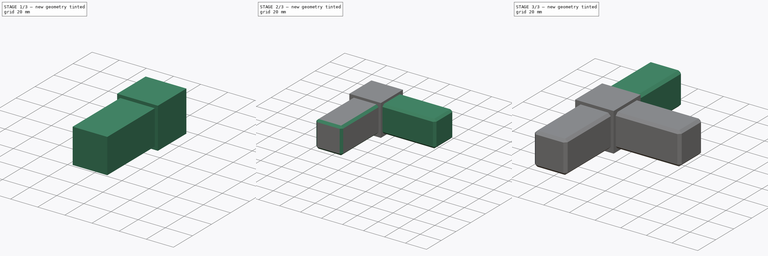
[diagram: build sequence overview — one tinted view per stage of 3, left to right]
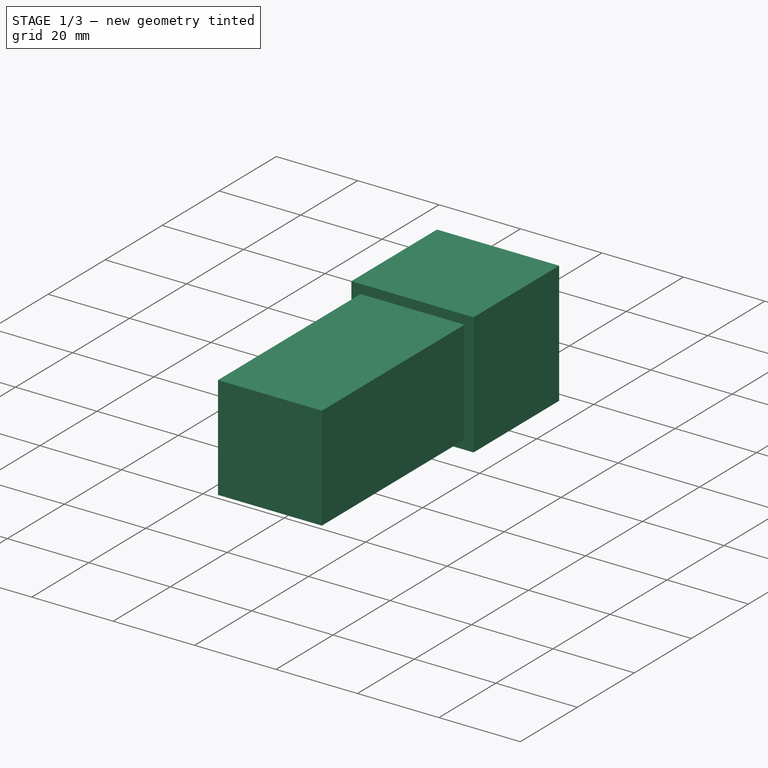
[diagram: stage 1 of 3 — iso view after this stage's code; geometry added in this stage tinted green]
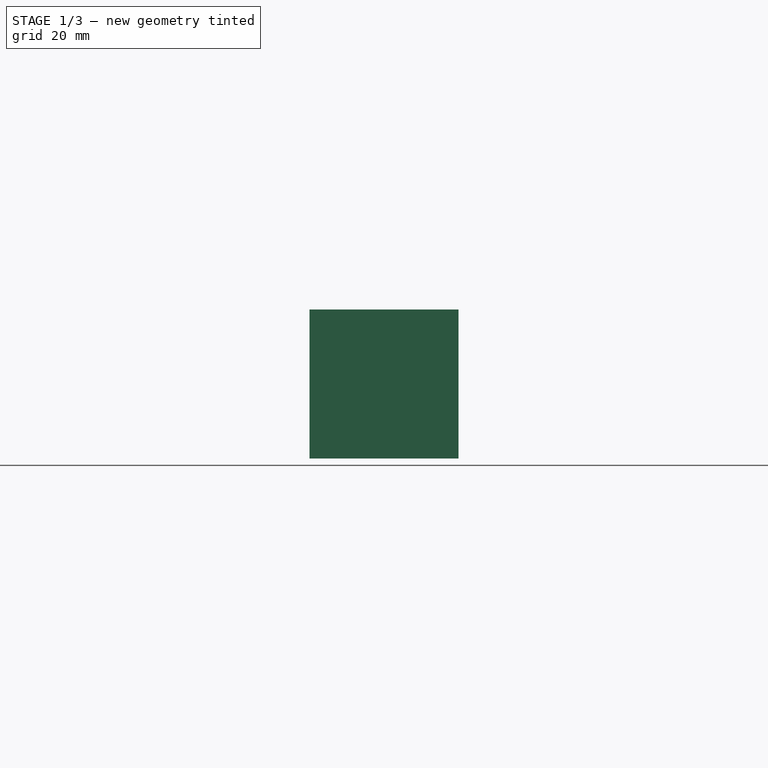
[diagram: stage 1 of 3 — front view after this stage's code; geometry added in this stage tinted green]
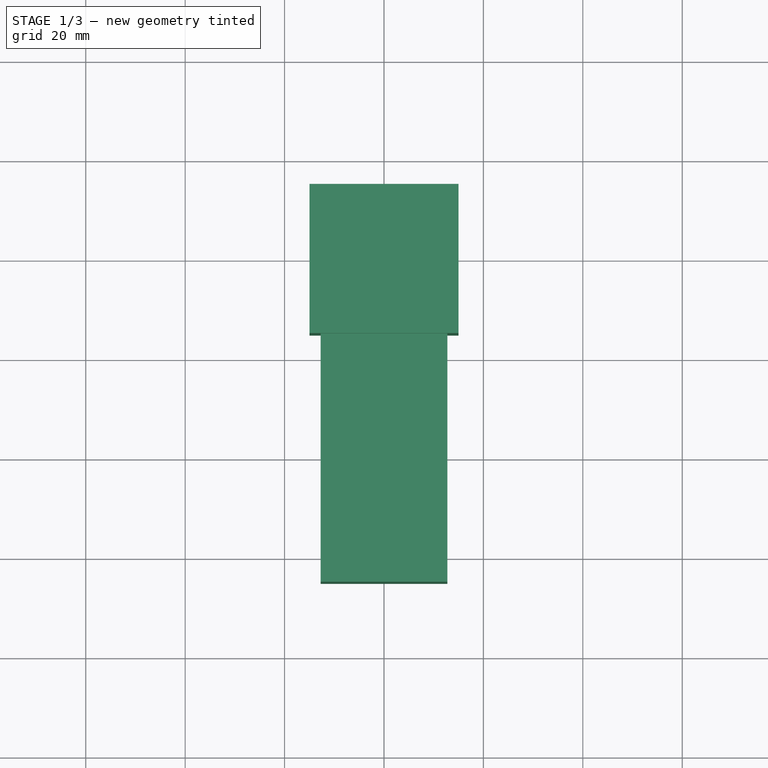
[diagram: stage 1 of 3 — top view after this stage's code; geometry added in this stage tinted green]
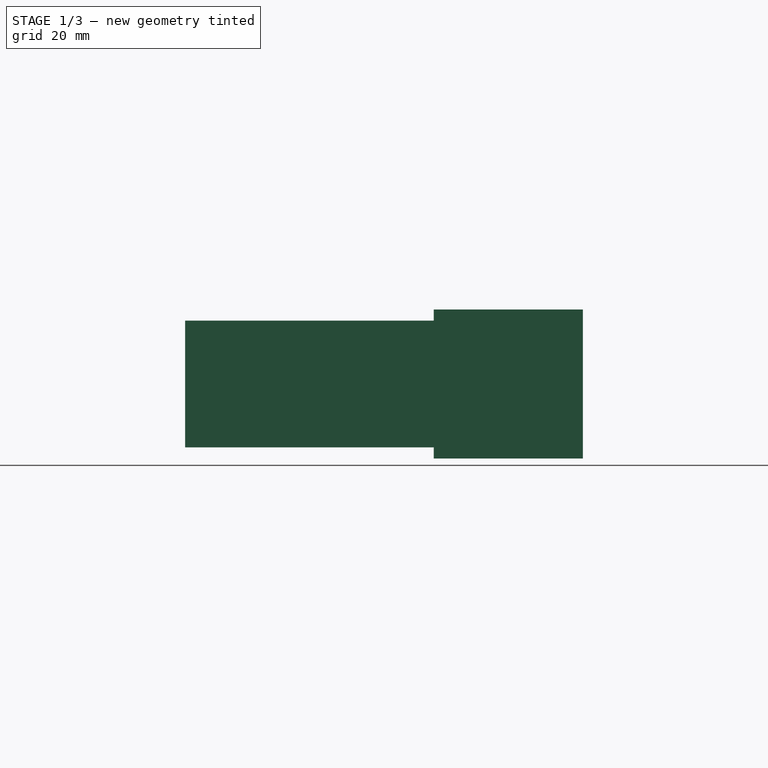
[diagram: stage 1 of 3 — right view after this stage's code; geometry added in this stage tinted green]
FCSTD DOCUMENT  (FreeCAD 0.20R29603 (Git))
Label: T-Verbinder_30x30x2
License: All rights reserved
LicenseURL: http://en.wikipedia.org/wiki/All_rights_reserved
objects: Sketcher::SketchObject×4, PartDesign::Pad×4, PartDesign::Chamfer×3, PartDesign::Body×1
note: 19 computed .brp shape members not serialized (recipe doc carries the construction recipe); baked Part::Feature solids carry a one-line shape summary decoded from their .brp

FEATURE [Sketcher::SketchObject] Sketch
  FullyConstrained = true
  MapMode = 5
  Support = -> [XY_Plane]
  sketch-geometry (5):
    g0: LineSegment StartX=15 StartY=15 StartZ=0 EndX=15 EndY=-15 EndZ=0
    g1: LineSegment StartX=15 StartY=-15 StartZ=0 EndX=-15 EndY=-15 EndZ=0
    g2: LineSegment StartX=-15 StartY=-15 StartZ=0 EndX=-15 EndY=15 EndZ=0
    g3: LineSegment StartX=-15 StartY=15 StartZ=0 EndX=15 EndY=15 EndZ=0
    g4: GeomPoint X=0 Y=0 Z=0
  constraints (12):
    c: Coincident(g0,g1)
    c: Coincident(g1,g2)
    c: Coincident(g2,g3)
    c: Coincident(g3,g0)
    c: Horizontal(g1)
    c: Horizontal(g3)
    c: Vertical(g0)
    c: Vertical(g2)
    c: Symmetric(g1,g0,g4)
    c: Coincident(g4,g-1)
    c: Distance(g3) = 30
    c: Distance(g0) = 30
FEATURE [PartDesign::Pad] Pad
  Direction = (0,0,1)
  Length = 30
  Length2 = 10
  Profile = -> Sketch
  ReferenceAxis = -> Sketch [N_Axis]
  Type = 0
FEATURE [Sketcher::SketchObject] Sketch001
  ExternalGeometry = -> [Pad]
  FullyConstrained = true
  MapMode = 5
  Placement = pos=(0,-15,0) rot=(1,0,0;1.5708rad)
  Support = -> [Pad]
  sketch-geometry (4):
    g0: LineSegment StartX=-12.75 StartY=27.75 StartZ=0 EndX=12.75 EndY=27.75 EndZ=0
    g1: LineSegment StartX=12.75 StartY=27.75 StartZ=0 EndX=12.75 EndY=2.25 EndZ=0
    g2: LineSegment StartX=12.75 StartY=2.25 StartZ=0 EndX=-12.75 EndY=2.25 EndZ=0
    g3: LineSegment StartX=-12.75 StartY=2.25 StartZ=0 EndX=-12.75 EndY=27.75 EndZ=0
  constraints (12):
    c: Coincident(g0,g1)
    c: Coincident(g1,g2)
    c: Coincident(g2,g3)
    c: Coincident(g3,g0)
    c: Horizontal(g0)
    c: Horizontal(g2)
    c: Vertical(g1)
    c: Vertical(g3)
    c: Distance(g1,g-3) = 2.25
    c: Distance(g1,g-4) = 2.25
    c: Distance(g1) = 25.5
    c: Distance(g2) = 25.5
FEATURE [PartDesign::Pad] Pad001
  BaseFeature = -> Pad
  Direction = (0,-1,2e-16)
  Length = 50
  Length2 = 10
  Profile = -> Sketch001
  ReferenceAxis = -> Sketch001 [N_Axis]
  Type = 0
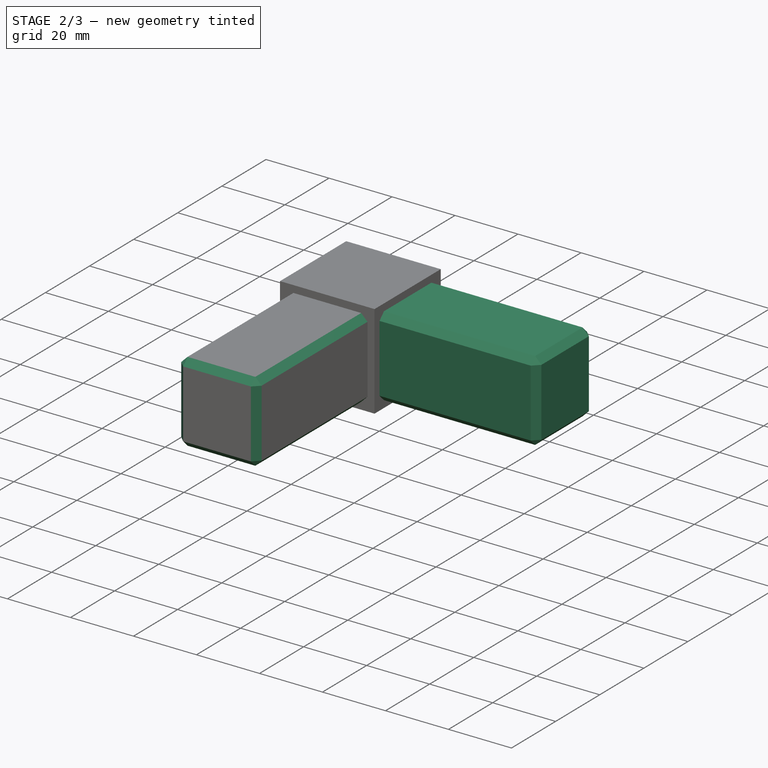
[diagram: stage 2 of 3 — iso view after this stage's code; geometry added in this stage tinted green]
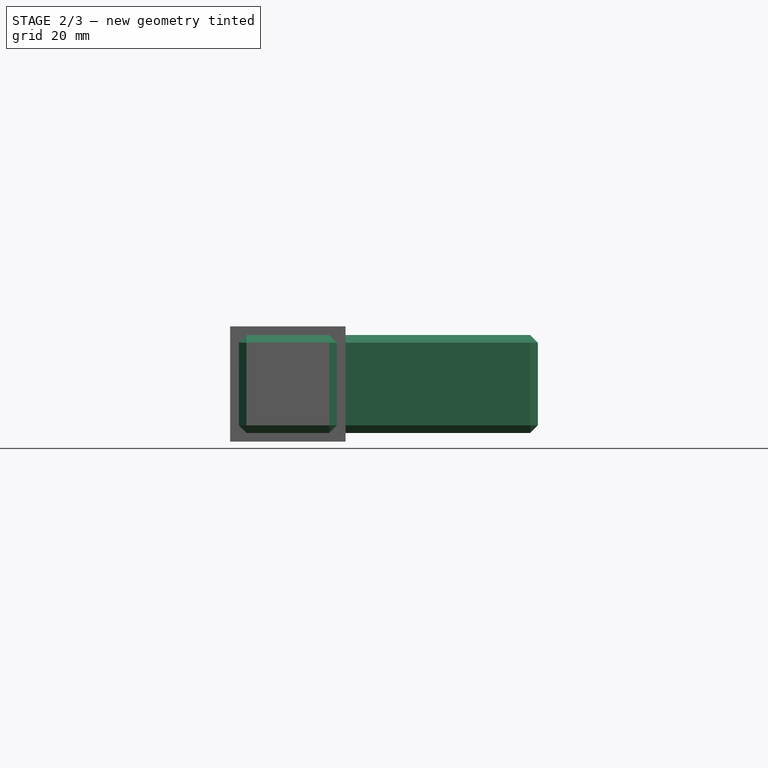
[diagram: stage 2 of 3 — front view after this stage's code; geometry added in this stage tinted green]
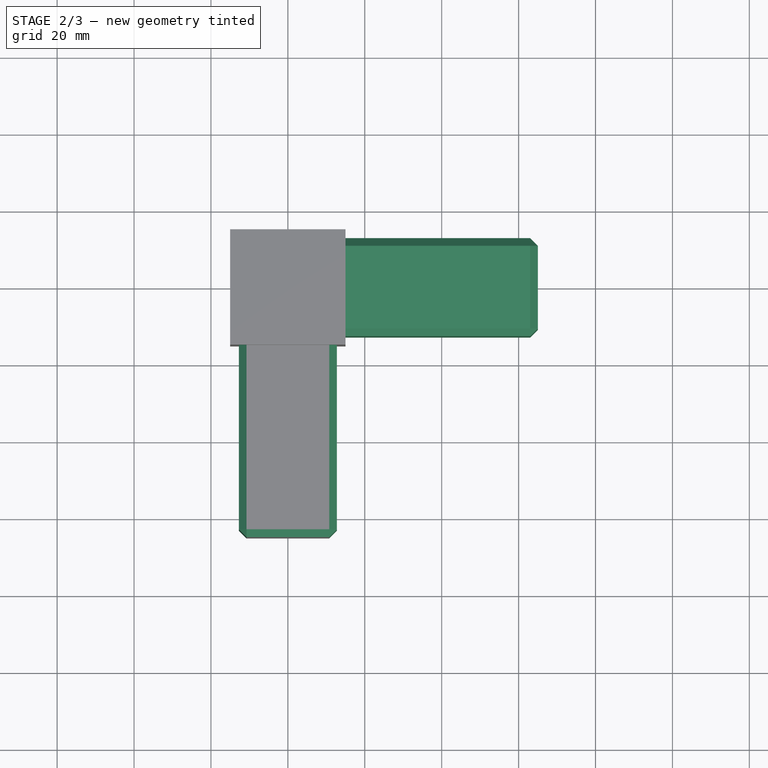
[diagram: stage 2 of 3 — top view after this stage's code; geometry added in this stage tinted green]
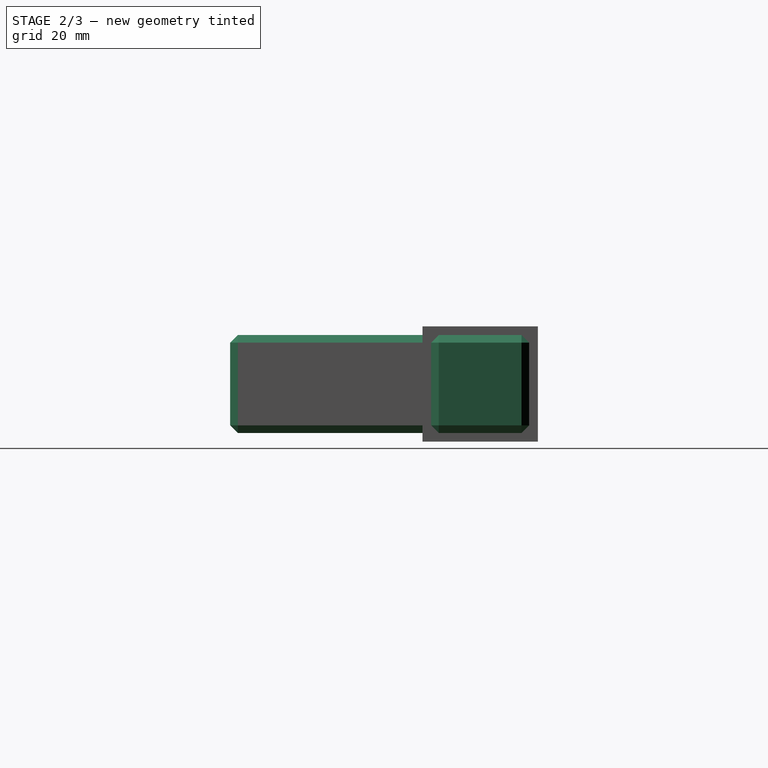
[diagram: stage 2 of 3 — right view after this stage's code; geometry added in this stage tinted green]
FEATURE [PartDesign::Chamfer] Chamfer
  Angle = 45
  Base = -> Pad001 [Edge18,Edge19,Edge17,Edge21,Edge23,Edge24,Edge22,Edge20]
  BaseFeature = -> Pad001
  ChamferType = 0
  FlipDirection = false
  Size = 2
  Size2 = 1
  SupportTransform = false
  UseAllEdges = false
FEATURE [Sketcher::SketchObject] Sketch002
  ExternalGeometry = -> [Chamfer]
  FullyConstrained = true
  MapMode = 5
  Placement = pos=(15,0,0) rot=(0.57735,0.57735,0.57735;2.0944rad)
  Support = -> [Chamfer]
  sketch-geometry (4):
    g0: LineSegment StartX=-12.75 StartY=27.75 StartZ=0 EndX=12.75 EndY=27.75 EndZ=0
    g1: LineSegment StartX=12.75 StartY=27.75 StartZ=0 EndX=12.75 EndY=2.25 EndZ=0
    g2: LineSegment StartX=12.75 StartY=2.25 StartZ=0 EndX=-12.75 EndY=2.25 EndZ=0
    g3: LineSegment StartX=-12.75 StartY=2.25 StartZ=0 EndX=-12.75 EndY=27.75 EndZ=0
  constraints (12):
    c: Coincident(g0,g1)
    c: Coincident(g1,g2)
    c: Coincident(g2,g3)
    c: Coincident(g3,g0)
    c: Horizontal(g0)
    c: Horizontal(g2)
    c: Vertical(g1)
    c: Vertical(g3)
    c: Distance(g1,g-3) = 2.25
    c: Distance(g1,g-4) = 2.25
    c: Distance(g1) = 25.5
    c: Distance(g2) = 25.5
FEATURE [PartDesign::Pad] Pad002
  BaseFeature = -> Chamfer
  Direction = (1,0,0)
  Length = 50
  Length2 = 10
  Profile = -> Sketch002
  ReferenceAxis = -> Sketch002 [N_Axis]
  Type = 0
FEATURE [PartDesign::Chamfer] Chamfer001
  Angle = 45
  Base = -> Pad002 [Edge59,Edge58,Edge54,Edge60,Edge55,Edge57,Edge53,Edge56]
  BaseFeature = -> Pad002
  ChamferType = 0
  FlipDirection = false
  Size = 2
  Size2 = 1
  SupportTransform = false
  UseAllEdges = false
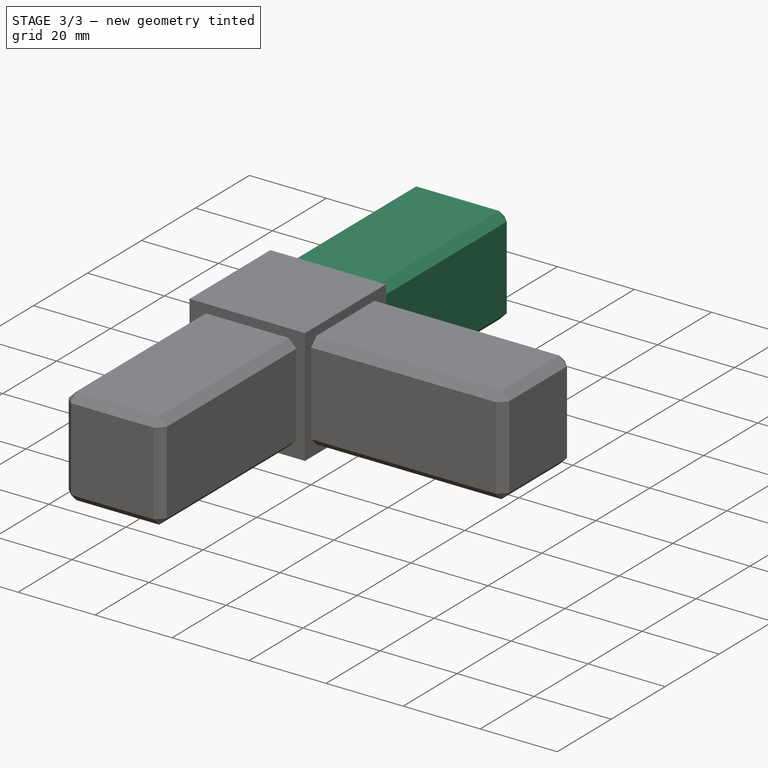
[diagram: stage 3 of 3 — iso view after this stage's code; geometry added in this stage tinted green]
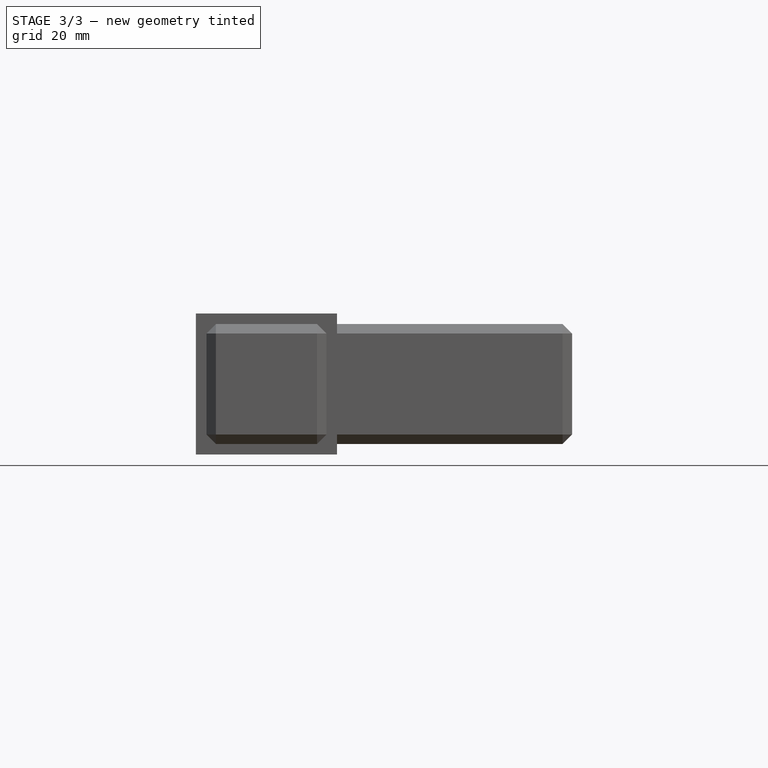
[diagram: stage 3 of 3 — front view after this stage's code; geometry added in this stage tinted green]
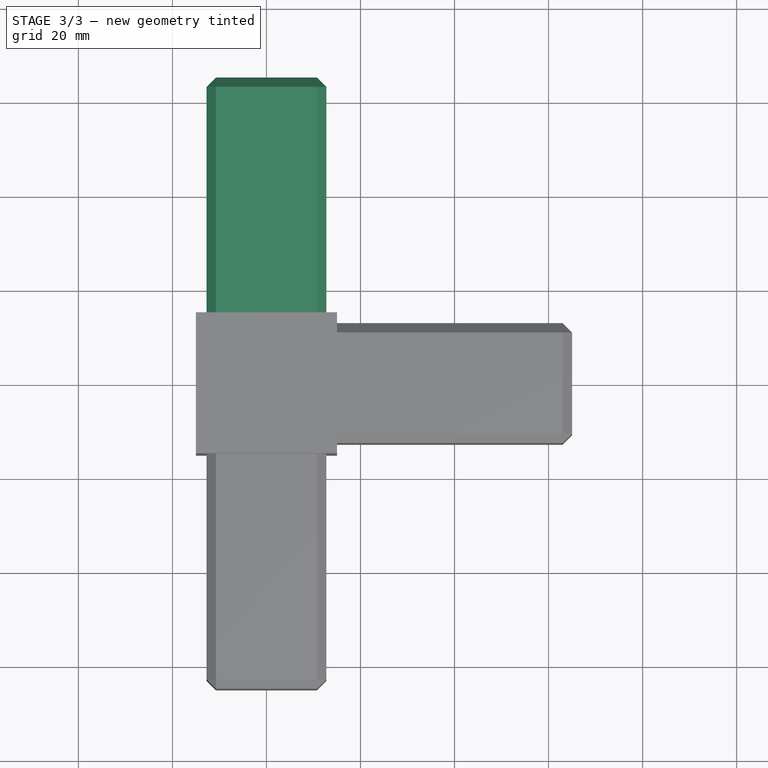
[diagram: stage 3 of 3 — top view after this stage's code; geometry added in this stage tinted green]
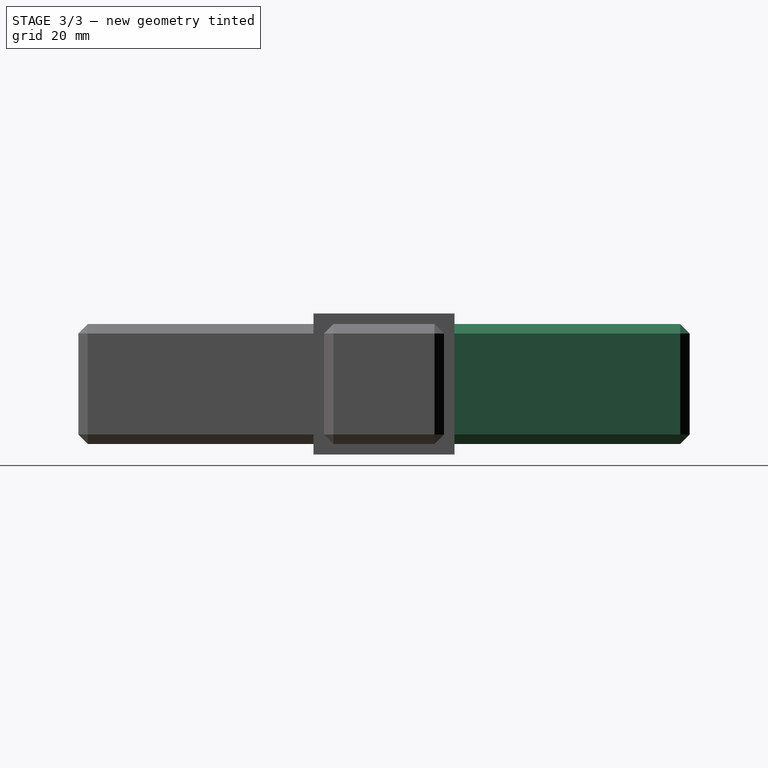
[diagram: stage 3 of 3 — right view after this stage's code; geometry added in this stage tinted green]
FEATURE [Sketcher::SketchObject] Sketch003
  ExternalGeometry = -> [Chamfer001]
  FullyConstrained = true
  MapMode = 5
  Placement = pos=(0,15,0) rot=(0,0.707107,0.707107;3.14159rad)
  Support = -> [Chamfer001]
  sketch-geometry (4):
    g0: LineSegment StartX=-12.75 StartY=27.75 StartZ=0 EndX=12.75 EndY=27.75 EndZ=0
    g1: LineSegment StartX=12.75 StartY=27.75 StartZ=0 EndX=12.75 EndY=2.25 EndZ=0
    g2: LineSegment StartX=12.75 StartY=2.25 StartZ=0 EndX=-12.75 EndY=2.25 EndZ=0
    g3: LineSegment StartX=-12.75 StartY=2.25 StartZ=0 EndX=-12.75 EndY=27.75 EndZ=0
  constraints (12):
    c: Coincident(g0,g1)
    c: Coincident(g1,g2)
    c: Coincident(g2,g3)
    c: Coincident(g3,g0)
    c: Horizontal(g0)
    c: Horizontal(g2)
    c: Vertical(g1)
    c: Vertical(g3)
    c: Distance(g1,g-4) = 2.25
    c: Distance(g1,g-3) = 2.25
    c: Distance(g1) = 25.5
    c: Distance(g2) = 25.5
FEATURE [PartDesign::Pad] Pad003
  BaseFeature = -> Chamfer001
  Direction = (0,1,-2e-16)
  Length = 50
  Length2 = 10
  Profile = -> Sketch003
  ReferenceAxis = -> Sketch003 [N_Axis]
  Type = 0
FEATURE [PartDesign::Chamfer] Chamfer002
  Angle = 45
  Base = -> Pad003 [Edge62,Edge66,Edge68,Edge67,Edge63,Edge61,Edge65,Edge64]
  BaseFeature = -> Pad003
  ChamferType = 0
  FlipDirection = false
  Size = 2
  Size2 = 1
  SupportTransform = false
  UseAllEdges = false
FEATURE [PartDesign::Body] Body
  Group = -> [Sketch,Pad,Sketch001,Pad001,Chamfer,Sketch002,Pad002,Chamfer001,Sketch003,Pad003,Chamfer002]
  Origin = -> Origin
  Tip = -> Chamfer002
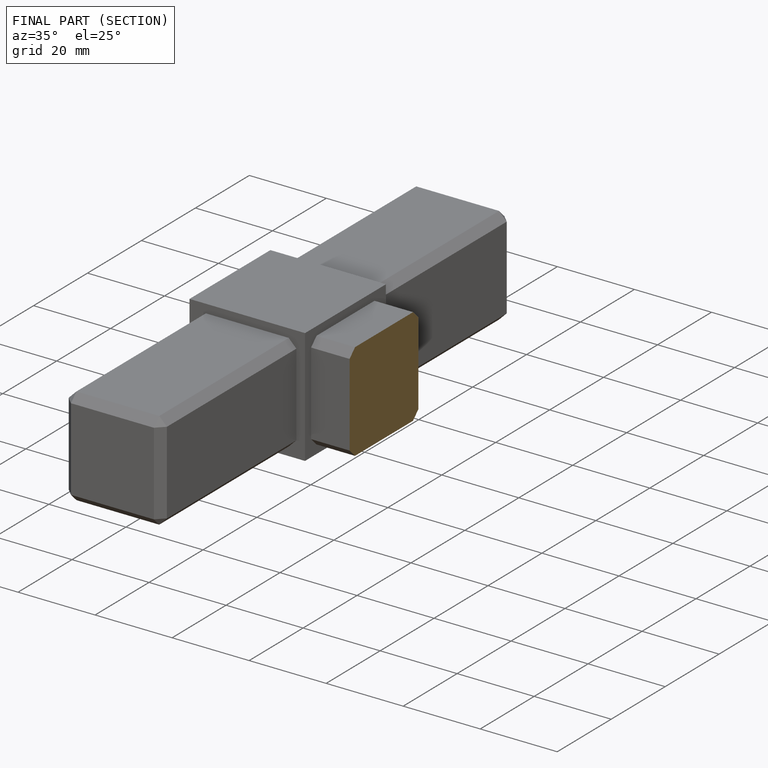
[diagram: finished part — half-section view (interior)]
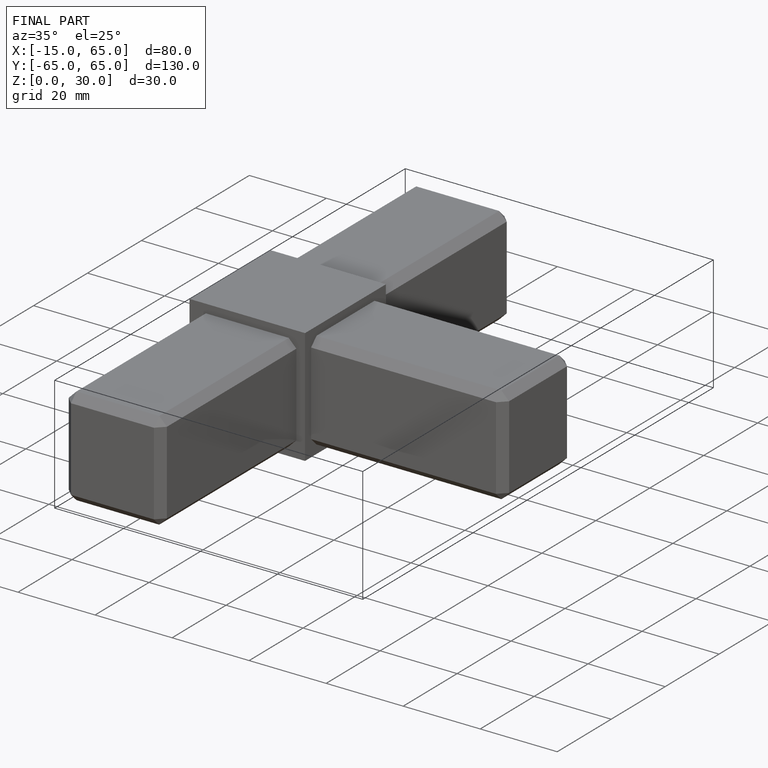
[diagram: finished part — iso view with bounding-box wireframe]
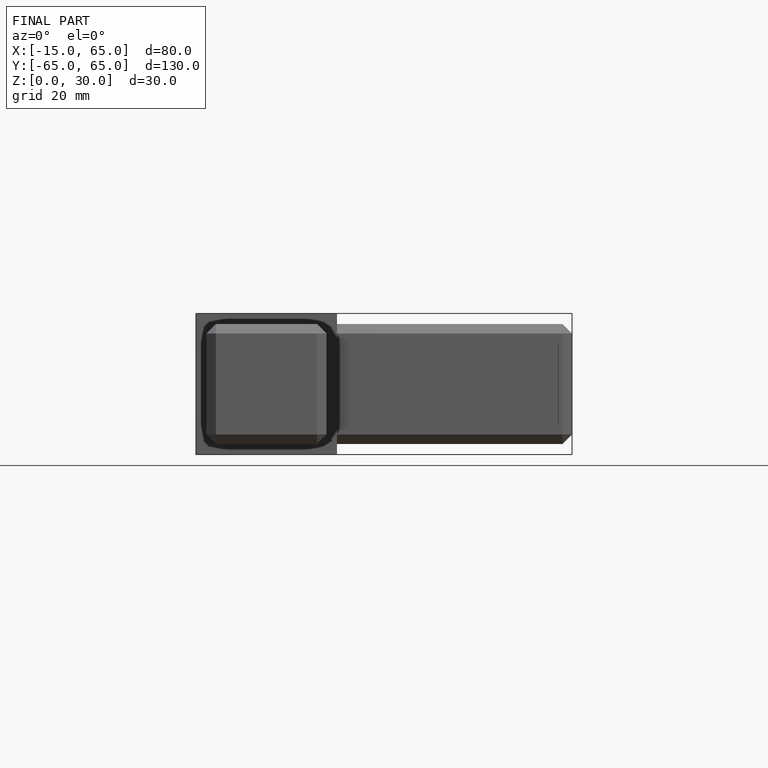
[diagram: finished part — front view with bounding-box wireframe]
